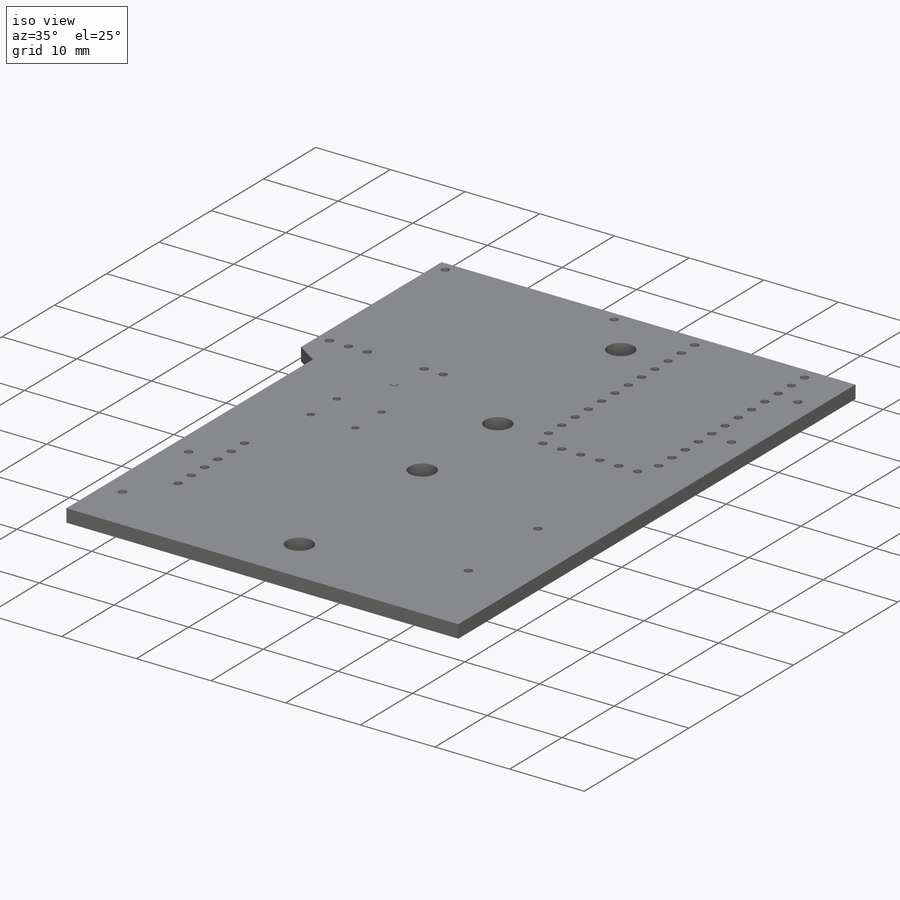
[diagram: iso view]
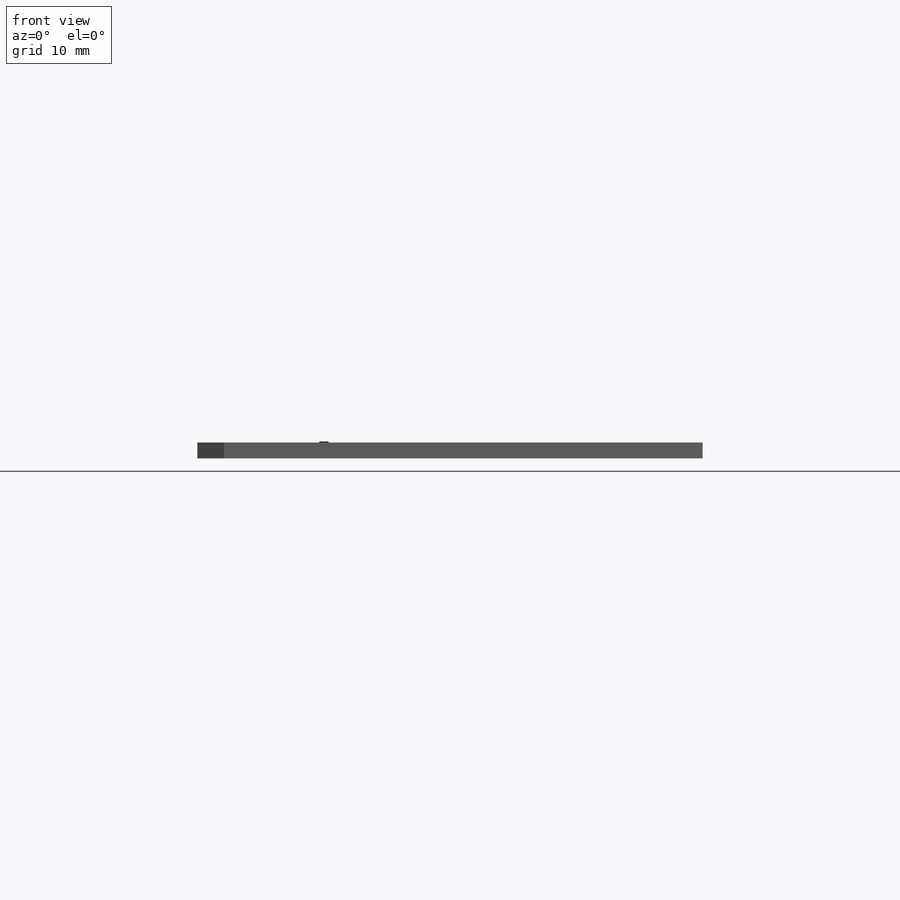
[diagram: front view]
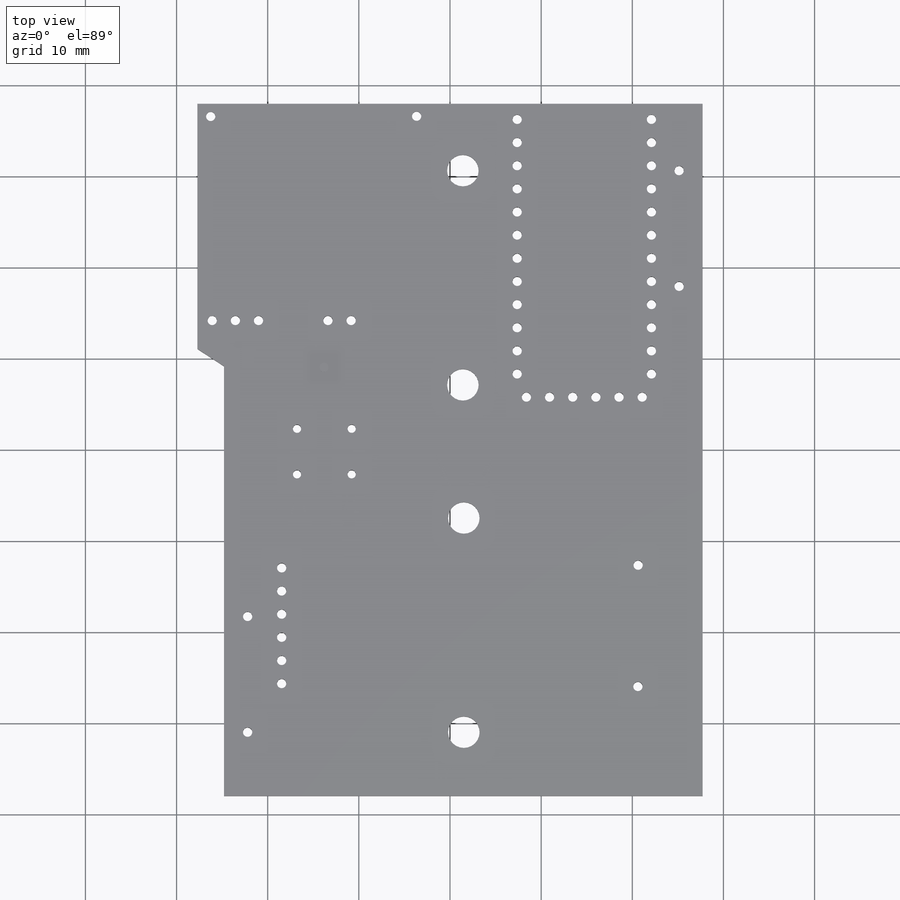
[diagram: top view]
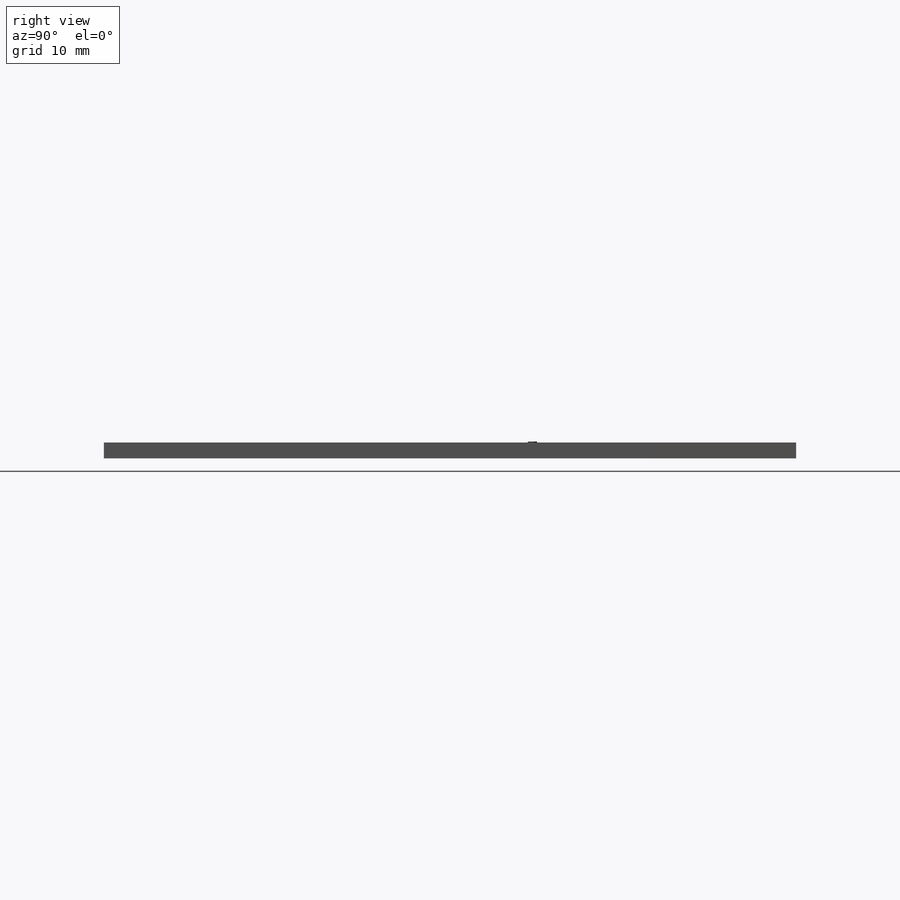
[diagram: right view]
SOLIDWORKS PART (.sldprt)
format: sldprt  version: not decoded by parser v0  size: 523,264 bytes
history: native  units: mm
features: sketch x9, cut_extrude x6, plane x3, extrude x2, material x1 (+11 scaffold rows collapsed)
feature tree (32):
  scaffold x11  (default folders/planes/origin — collapsed)
  material  "Material <not specified>"
  sketch  "Sketch1"  dims[D1=52.51mm D2=55.43mm D3=75.95mm D4=47.15mm D5=26.9mm]
  extrude  "Boss-Extrude1"  Depth=1.75mm
  sketch  "Sketch2"  dims[c1.D2=3.4544mm c1.D9=1.016mm c1.D14=1.016mm c2.D2=75.8952mm c2.D3=23.5077mm c2.D4=23.5077mm c2.D5=5.2705mm c2.D6=5.6007mm c2.D7=2.5908mm c2.D8=12.7mm c2.D10=23.7236mm c2.D11=12.7mm c2.D12=23.7236mm c2.D13=2.5781mm c2.D1=0.0mm]
  cut_extrude  "Cut-Extrude1"  [1 undecoded]
  sketch  "Sketch4"  dims[D8=1.016mm D2=6.3246mm D3=2.54mm D4=2.54mm D5=2.54mm D6=2.54mm D7=2.54mm D9=25.0317mm D1=0.0mm]
  cut_extrude  "Cut-Extrude2"  [1 undecoded]
  sketch  "Sketch5"  dims[D7=1.016mm D2=1.6256mm D3=2.54mm D4=2.54mm D5=7.62mm D6=2.54mm D8=23.7744mm D1=0.0mm]
  cut_extrude  "Cut-Extrude3"  [1 undecoded]
  sketch  "Sketch6"  dims[D2=1.016mm D3=1.7018mm D4=5.6134mm D5=14.732mm D6=2.54mm D7=2.54mm D8=2.54mm D9=2.54mm D10=2.54mm D11=2.54mm D12=2.54mm D13=2.54mm D14=2.54mm D15=2.54mm D16=2.54mm D17=2.54mm D18=2.54mm D19=2.54mm D20=30.48mm D1=0.0mm]
  cut_extrude  "Cut-Extrude4"  [1 undecoded]
  sketch  "Sketch7"  dims[D4=1.016mm D9=1.016mm D2=1.4605mm D3=1.3843mm D5=24.0538mm D6=1.3589mm D7=7.0993mm D8=12.0142mm D10=25.3238mm D11=7.0739mm D1=0.0mm]
  cut_extrude  "Cut-Extrude5"  [1 undecoded]
  plane  "Plane1"
  plane  "Plane2"
  sketch  "Sketch8"  dims[c1.D9=0.9mm c1.D1=44.5008mm c1.D2=35.2933mm c1.D3=38.5064mm c1.D4=35.2933mm c1.D5=40.2971mm c1.D6=40.2971mm c1.D7=38.5064mm c1.D8=44.5008mm c2.D3=6.0mm c2.D4=5.0mm]
  cut_extrude  "Cut-Extrude6"  [1 undecoded]
  sketch  "Sketch9"  dims[D3=1.0mm D1=47.023mm D2=41.5417mm]
  extrude  "Boss-Extrude2"  Depth=0.1mm
  plane  "Plane3"  Offset=0.5001mm
  sketch  "Sketch10"  dims[D1=9.2297mm D2=37.7933mm]
decode coverage: 11 of 17 modeling features carry decoded parameters
note: 6 parameter values undecoded
summary: no parameter record found for 6 features
note: suppression state not decoded; provenance and decode notes live in map.json
